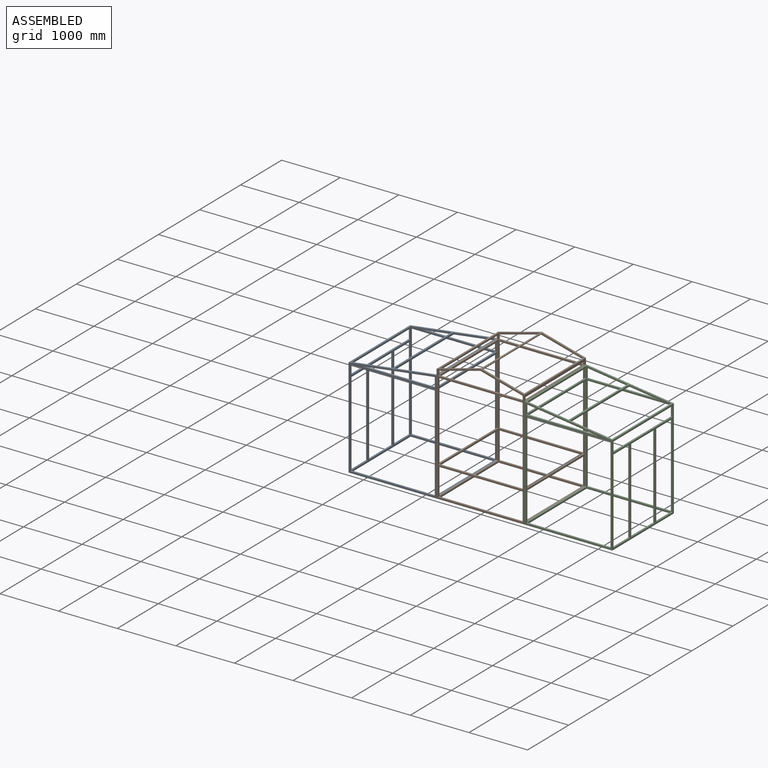
[diagram: assembled view]
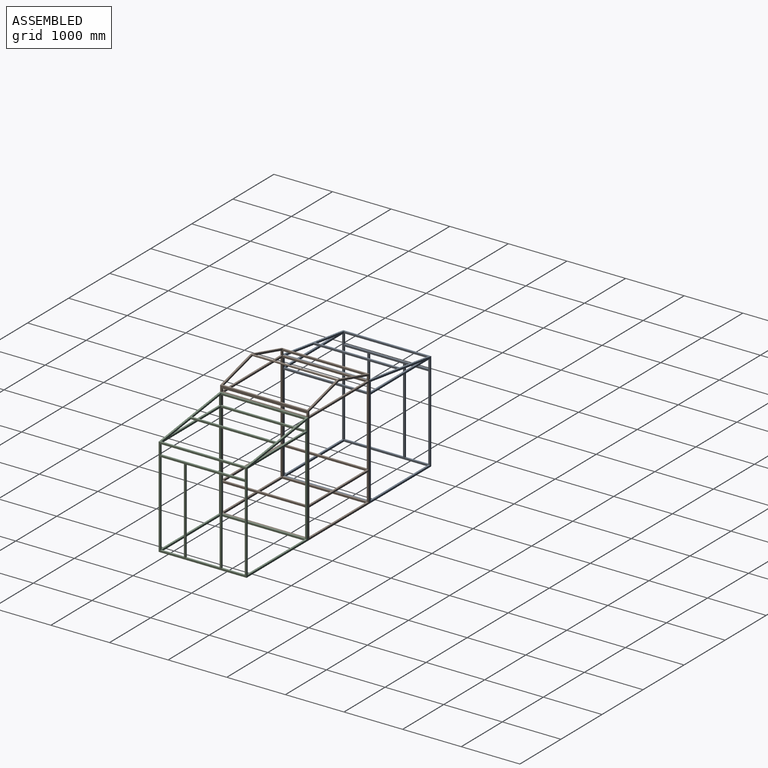
[diagram: assembled view, second angle]
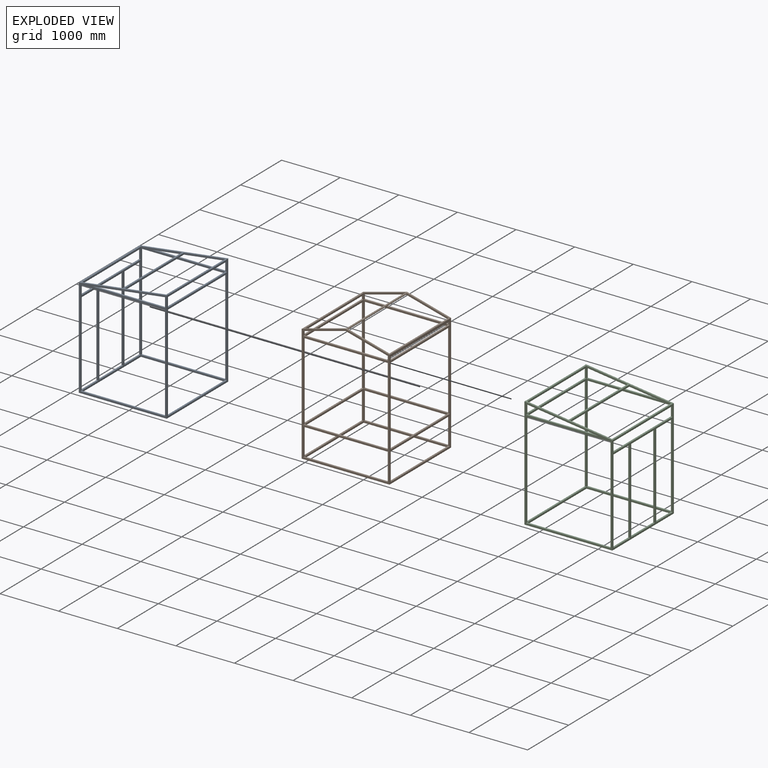
[diagram: exploded view]
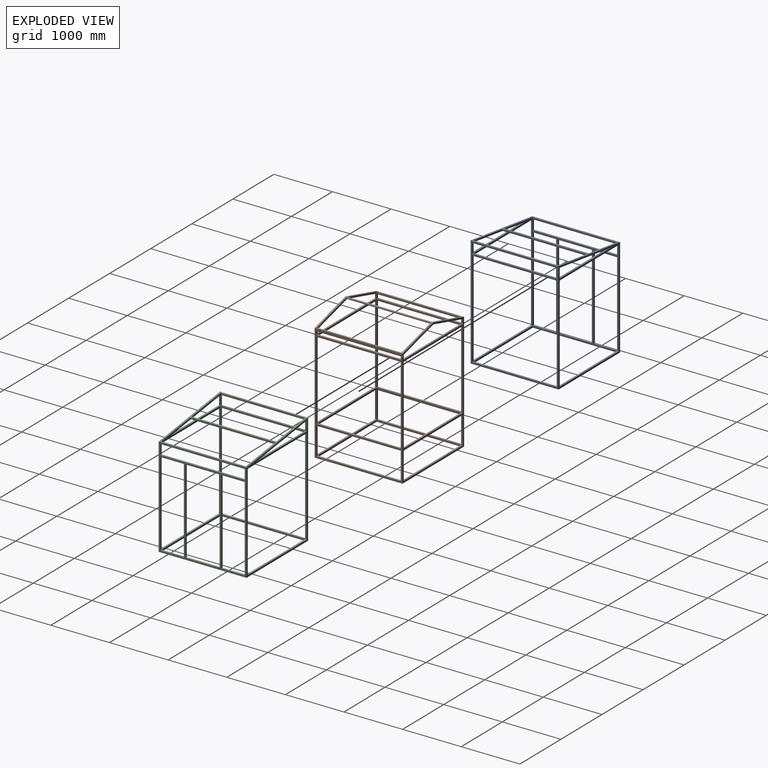
[diagram: exploded view, second angle]
ASSEMBLY  parts=3 mates=2
PART A: 60 faces, bbox 1500x1500x1900 mm
  f0: plane 170x30mm, normal (0,-1,0), area 5100mm2, adj f11,f14,f27,f57
  f1: plane 580x30mm, normal (0,0,1), area 17400mm2, adj f11,f14,f52,f54
  f2: plane 400x30mm, normal (0,0,1), area 12000mm2, adj f11,f14,f41,f59
  f3: plane 170x30mm, normal (0,1,0), area 5100mm2, adj f11,f14,f27,f57
  f4: plane 30x4mm, normal (0,-1,0), area 60mm2, adj f31,f32,f46
  f5: plane 165.73x30mm, normal (0,-1,0), area 4972mm2, adj f13,f16,f30,f38
  f6: plane 1500x230mm, normal (0,-1,0), area 83483.2mm2, adj f10,f12,f15,f16,f17,f25,f26,f28
  f7: plane 1640x30mm, normal (0,-1,0), area 49200mm2, adj f9,f16,f23,f36
  f8: plane 1440x30mm, normal (0,-1,0), area 43200mm2, adj f11,f18,f19,f22
  f9: plane 1640x30mm, normal (1,0,0), area 49200mm2, adj f7,f10,f19,f21
  f10: plane 1440x30mm, normal (0,0,-1), area 43200mm2, adj f6,f9,f11,f21
  f11: plane 1670x1500mm, normal (-1,0,0), area 271200mm2, adj f0,f1,f2,f3,f8,f10,f18,f19
  f12: plane 1243.01x30mm, normal (0,0,1), area 37290.3mm2, adj f6,f13,f17,f21
  f13: plane 165.73x30mm, normal (1,0,0), area 4972mm2, adj f5,f12,f17,f21
  f14: plane 1700x1500mm, normal (1,0,0), area 318000mm2, adj f0,f1,f2,f3,f15,f18,f20,f21
  f15: plane 1500x200mm, normal (0.13,0,0.99), area 45398.2mm2, adj f6,f14,f16,f21,f35
  f16: plane 1900x1500mm, normal (-1,0,0), area 243600mm2, adj f5,f6,f7,f15,f18,f21,f23,f29
  f17: plane 1243.01x165.73mm, normal (-0.13,0,-0.99), area 37620.3mm2, adj f6,f12,f13,f21
  f18: plane 1500x1500mm, normal (0,0,-1), area 176400mm2, adj f8,f11,f14,f16,f21,f22,f39,f51
  f19: plane 1440x30mm, normal (0,0,1), area 43200mm2, adj f8,f9,f11,f21
  f20: plane 1440x30mm, normal (0,-1,0), area 43200mm2, adj f11,f14,f24,f56
  f21: plane 1900x1500mm, normal (0,1,0), area 235395.3mm2, adj f9,f10,f11,f12,f13,f14,f15,f16
  f22: plane 1440x30mm, normal (1,0,0), area 43200mm2, adj f8,f18,f23,f39
  f23: plane 1440x30mm, normal (0,0,1), area 43200mm2, adj f7,f16,f22,f40
  f24: plane 400x30mm, normal (0,0,1), area 12000mm2, adj f11,f14,f20,f55
  f25: plane 1440x30mm, normal (0,0,1), area 43200mm2, adj f6,f14,f26,f42
  f26: plane 1440x30mm, normal (-1,0,0), area 43200mm2, adj f6,f25,f27,f42
  f27: plane 1440x30mm, normal (0,0,-1), area 43200mm2, adj f0,f3,f14,f26
  f28: plane 1440x30mm, normal (1,0,0), area 43200mm2, adj f6,f29,f30,f42
  f29: plane 1440x30mm, normal (0,0,1), area 43200mm2, adj f6,f16,f28,f42
  f30: plane 1440x30mm, normal (0,0,-1), area 43200mm2, adj f5,f16,f28,f43
  f31: plane 1440x30mm, normal (1,0,0), area 43200mm2, adj f4,f6,f32,f34,f35,f42
  f32: plane 1440x30mm, normal (0,0,1), area 43200mm2, adj f4,f31,f33,f35
  f33: plane 1440x30mm, normal (-1,0,0), area 43200mm2, adj f6,f32,f34,f42
  f34: plane 1440x30mm, normal (0,0,-1), area 43200mm2, adj f6,f31,f33,f42
  f35: plane 30x4mm, normal (0,1,0), area 60mm2, adj f15,f31,f32
  f36: plane 1440x30mm, normal (0,0,-1), area 43200mm2, adj f7,f16,f37,f40
  f37: plane 1440x30mm, normal (1,0,0), area 43200mm2, adj f6,f36,f38,f42
  f38: plane 1440x30mm, normal (0,0,1), area 43200mm2, adj f5,f16,f37,f43
  f39: plane 1440x30mm, normal (0,1,0), area 43200mm2, adj f11,f18,f22,f47
  f40: plane 1640x30mm, normal (0,1,0), area 49200mm2, adj f16,f23,f36,f48
  f41: plane 1440x30mm, normal (0,1,0), area 43200mm2, adj f2,f11,f14,f58
  f42: plane 1500x230mm, normal (0,1,0), area 83483.2mm2, adj f16,f25,f26,f28,f29,f31,f33,f34
  f43: plane 165.73x30mm, normal (0,1,0), area 4972mm2, adj f16,f30,f38,f45
  f44: plane 1243.01x30mm, normal (0,0,1), area 37290.3mm2, adj f42,f45,f50,f51
  f45: plane 165.73x30mm, normal (1,0,0), area 4972mm2, adj f43,f44,f50,f51
  f46: plane 1500x200mm, normal (0.13,0,0.99), area 45398.2mm2, adj f4,f14,f16,f42,f51
  f47: plane 1440x30mm, normal (0,0,1), area 43200mm2, adj f11,f39,f48,f51
  f48: plane 1640x30mm, normal (1,0,0), area 49200mm2, adj f40,f47,f49,f51
  f49: plane 1440x30mm, normal (0,0,-1), area 43200mm2, adj f11,f42,f48,f51
  f50: plane 1243.01x165.73mm, normal (-0.13,0,-0.99), area 37620.3mm2, adj f42,f44,f45,f51
  f51: plane 1900x1500mm, normal (0,-1,0), area 235395.3mm2, adj f11,f14,f16,f18,f44,f45,f46,f47
  f52: plane 1440x30mm, normal (0,1,0), area 43200mm2, adj f1,f11,f14,f53
  f53: plane 580x30mm, normal (0,0,-1), area 17400mm2, adj f11,f14,f52,f54
  f54: plane 1440x30mm, normal (0,-1,0), area 43200mm2, adj f1,f11,f14,f53
  f55: plane 1440x30mm, normal (0,1,0), area 43200mm2, adj f11,f14,f24,f56
  f56: plane 400x30mm, normal (0,0,-1), area 12000mm2, adj f11,f14,f20,f55
  f57: plane 1440x30mm, normal (0,0,1), area 43200mm2, adj f0,f3,f11,f14
  f58: plane 400x30mm, normal (0,0,-1), area 12000mm2, adj f11,f14,f41,f59
  f59: plane 1440x30mm, normal (0,-1,0), area 43200mm2, adj f2,f11,f14,f58
PART B: 78 faces, bbox 1500x1500x2200 mm
  f0: plane 7.67x2.05mm, normal (0,-1,0), area 2.8mm2, adj f52,f75
  f1: plane 7.67x2.05mm, normal (0,-1,0), area 2.8mm2, adj f52,f72
  f2: plane 1500x221mm, normal (0,-1,0), area 44209.7mm2, adj f16,f17,f18,f24,f25,f26,f32,f34
  f3: plane 1440x30mm, normal (0,-1,0), area 43200mm2, adj f19,f22,f44,f49
  f4: plane 1340x30mm, normal (0,-1,0), area 40200mm2, adj f14,f23,f40,f46
  f5: plane 1440x30mm, normal (0,-1,0), area 43200mm2, adj f21,f29,f41,f47
  f6: plane 470x30mm, normal (0,-1,0), area 14100mm2, adj f23,f27,f48,f50
  f7: plane 470x30mm, normal (0,-1,0), area 14100mm2, adj f20,f28,f43,f45
  f8: plane 54.2x30mm, normal (0,-1,0), area 1626mm2, adj f23,f26,f33,f38
  f9: plane 1440x30mm, normal (0,-1,0), area 43200mm2, adj f13,f15,f35,f39
  f10: plane 1340x30mm, normal (0,-1,0), area 40200mm2, adj f12,f28,f37,f42
  f11: plane 70x30mm, normal (0,-1,0), area 2100mm2, adj f16,f28,f31,f36
  f12: plane 1340x30mm, normal (1,0,0), area 40200mm2, adj f10,f13,f29,f30
  f13: plane 1440x30mm, normal (0,0,-1), area 43200mm2, adj f9,f12,f14,f30
  f14: plane 1340x30mm, normal (-1,0,0), area 40200mm2, adj f4,f13,f29,f30
  f15: plane 1440x30mm, normal (0,0,1), area 43200mm2, adj f9,f16,f26,f30
  f16: plane 1500x100mm, normal (1,0,0), area 47817.1mm2, adj f2,f11,f15,f17,f30,f31,f32,f54
  f17: plane 720x192mm, normal (0.26,0,-0.97), area 22354.8mm2, adj f2,f16,f18,f30
  f18: plane 720x192mm, normal (-0.26,0,-0.97), area 22354.8mm2, adj f2,f17,f26,f30
  f19: plane 1440x30mm, normal (0,0,1), area 43200mm2, adj f3,f20,f27,f30
  f20: plane 470x30mm, normal (1,0,0), area 14100mm2, adj f7,f19,f21,f30
  f21: plane 1440x30mm, normal (0,0,-1), area 43200mm2, adj f5,f20,f27,f30
  f22: plane 1500x1500mm, normal (0,0,-1), area 176400mm2, adj f3,f23,f28,f30,f44,f49,f63,f77
  f23: plane 2000x1500mm, normal (1,0,0), area 315550.8mm2, adj f4,f6,f8,f22,f24,f30,f33,f34
  f24: plane 750x200mm, normal (0.26,0,0.97), area 23286.3mm2, adj f2,f23,f25,f30,f51
  f25: plane 750x200mm, normal (-0.26,0,0.97), area 23286.3mm2, adj f2,f24,f28,f30,f53
  f26: plane 1500x100mm, normal (-1,0,0), area 70567.9mm2, adj f2,f8,f15,f18,f30,f33,f34,f54
  f27: plane 470x30mm, normal (-1,0,0), area 14100mm2, adj f6,f19,f21,f30
  f28: plane 2000x1500mm, normal (-1,0,0), area 292800mm2, adj f7,f10,f11,f22,f25,f30,f31,f32
  f29: plane 1440x30mm, normal (0,0,1), area 43200mm2, adj f5,f12,f14,f30
  f30: plane 2200x1500mm, normal (0,1,0), area 294549.6mm2, adj f12,f13,f14,f15,f16,f17,f18,f19
  f31: plane 1440x30mm, normal (0,0,-1), area 43200mm2, adj f11,f16,f28,f55
  f32: plane 1440x30mm, normal (0,0,1), area 43200mm2, adj f2,f16,f28,f54
  f33: plane 1440x30mm, normal (0,0,-1), area 43200mm2, adj f8,f23,f26,f57
  f34: plane 1440x30mm, normal (0,0,1), area 43200mm2, adj f2,f23,f26,f54
  f35: plane 1440x30mm, normal (1,0,0), area 43200mm2, adj f9,f36,f37,f56
  f36: plane 1440x30mm, normal (0,0,1), area 43200mm2, adj f11,f28,f35,f55
  f37: plane 1440x30mm, normal (0,0,-1), area 43200mm2, adj f10,f28,f35,f59
  f38: plane 1440x30mm, normal (0,0,1), area 43200mm2, adj f8,f23,f39,f57
  f39: plane 1440x30mm, normal (-1,0,0), area 43200mm2, adj f9,f38,f40,f56
  f40: plane 1440x30mm, normal (0,0,-1), area 43200mm2, adj f4,f23,f39,f58
  f41: plane 1440x30mm, normal (1,0,0), area 43200mm2, adj f5,f42,f43,f60
  f42: plane 1440x30mm, normal (0,0,1), area 43200mm2, adj f10,f28,f41,f59
  f43: plane 1440x30mm, normal (0,0,-1), area 43200mm2, adj f7,f28,f41,f61
  f44: plane 1440x30mm, normal (1,0,0), area 43200mm2, adj f3,f22,f45,f63
  f45: plane 1440x30mm, normal (0,0,1), area 43200mm2, adj f7,f28,f44,f61
  f46: plane 1440x30mm, normal (0,0,1), area 43200mm2, adj f4,f23,f47,f58
  f47: plane 1440x30mm, normal (-1,0,0), area 43200mm2, adj f5,f46,f48,f60
  f48: plane 1440x30mm, normal (0,0,-1), area 43200mm2, adj f6,f23,f47,f62
  f49: plane 1440x30mm, normal (-1,0,0), area 43200mm2, adj f3,f22,f50,f63
  f50: plane 1440x30mm, normal (0,0,1), area 43200mm2, adj f6,f23,f49,f62
  f51: plane 7.67x2.05mm, normal (0,1,0), area 2.8mm2, adj f24,f52
  f52: cylinder r=15.4mm len=1440mm, axis (0,1,0), area 139372.6mm2, adj f0,f1,f2,f51,f53,f54
  f53: plane 7.67x2.05mm, normal (0,1,0), area 2.8mm2, adj f25,f52
  f54: plane 1500x221mm, normal (0,1,0), area 44209.7mm2, adj f16,f26,f32,f34,f52,f64,f65,f72
  f55: plane 70x30mm, normal (0,1,0), area 2100mm2, adj f16,f28,f31,f36
  f56: plane 1440x30mm, normal (0,1,0), area 43200mm2, adj f35,f39,f71,f76
  f57: plane 54.2x30mm, normal (0,1,0), area 1626mm2, adj f23,f26,f33,f38
  f58: plane 1340x30mm, normal (0,1,0), area 40200mm2, adj f23,f40,f46,f74
  f59: plane 1340x30mm, normal (0,1,0), area 40200mm2, adj f28,f37,f42,f70
  f60: plane 1440x30mm, normal (0,1,0), area 43200mm2, adj f41,f47,f67,f69
  f61: plane 470x30mm, normal (0,1,0), area 14100mm2, adj f28,f43,f45,f66
  f62: plane 470x30mm, normal (0,1,0), area 14100mm2, adj f23,f48,f50,f68
  f63: plane 1440x30mm, normal (0,1,0), area 43200mm2, adj f22,f44,f49,f73
  f64: plane 720x192mm, normal (0.26,0,-0.97), area 22354.8mm2, adj f16,f54,f65,f77
  f65: plane 720x192mm, normal (-0.26,0,-0.97), area 22354.8mm2, adj f26,f54,f64,f77
  f66: plane 470x30mm, normal (1,0,0), area 14100mm2, adj f61,f67,f73,f77
  f67: plane 1440x30mm, normal (0,0,-1), area 43200mm2, adj f60,f66,f68,f77
  f68: plane 470x30mm, normal (-1,0,0), area 14100mm2, adj f62,f67,f73,f77
  f69: plane 1440x30mm, normal (0,0,1), area 43200mm2, adj f60,f70,f74,f77
  f70: plane 1340x30mm, normal (1,0,0), area 40200mm2, adj f59,f69,f71,f77
  f71: plane 1440x30mm, normal (0,0,-1), area 43200mm2, adj f56,f70,f74,f77
  f72: plane 750x200mm, normal (0.26,0,0.97), area 23286.3mm2, adj f1,f23,f54,f75,f77
  f73: plane 1440x30mm, normal (0,0,1), area 43200mm2, adj f63,f66,f68,f77
  f74: plane 1340x30mm, normal (-1,0,0), area 40200mm2, adj f58,f69,f71,f77
  f75: plane 750x200mm, normal (-0.26,0,0.97), area 23286.3mm2, adj f0,f28,f54,f72,f77
  f76: plane 1440x30mm, normal (0,0,1), area 43200mm2, adj f16,f26,f56,f77
  f77: plane 2200x1500mm, normal (0,-1,0), area 294549.6mm2, adj f16,f22,f23,f26,f28,f64,f65,f66
PART C: same geometry as A
PLACE A rot(axis=(0,0,1),180deg) t=(-2712.79,-1061.65,-2473.49)mm
PLACE B t=(-2712.79,438.35,-1973.49)mm
PLACE C t=(-1212.79,438.35,-2473.49)mm
MATE fastened A.f16 <-> B.f28  axis (1,0,0) through (-2712.79,438.35,-2473.49)mm
MATE fastened C.f16 <-> B.f23  axis (-1,0,0) through (-1212.79,438.35,-2473.49)mm
